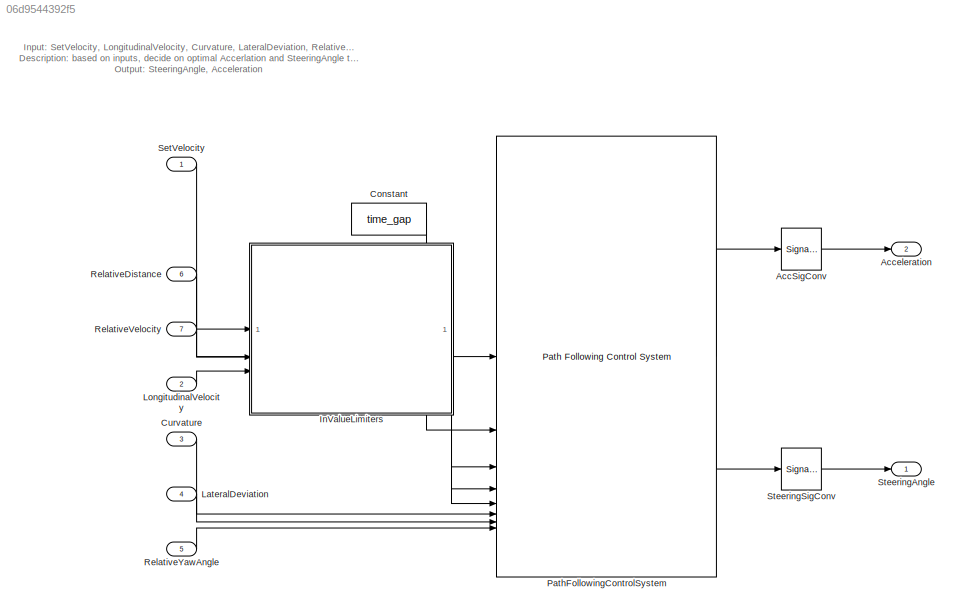
MODEL slx_06d9544392f5
KIND model
CONFIG AbsTol = auto
CONFIG EnableMultiTasking = on
CONFIG FixedStep = auto
CONFIG MaxStep = auto
CONFIG MinStep = auto
CONFIG RelTol = 1e-3
CONFIG SampleTimeConstraint = Unconstrained
CONFIG SolverName = FixedStepDiscrete
CONFIG StartTime = 0.0
CONFIG StopTime = 10.0
BLOCK [SignalConversion] AccSigConv
  OverrideOpt = off
BLOCK [Outport] Acceleration
  OutDataTypeStr = double
  OutMax = realmax
  OutMin = -realmax
  Port = 2
  PortDimensions = 1
  SampleTime = Ts
  SignalType = real
  Unit = m/s^2
  VarSizeSig = No
  VectorParamsAs1DForOutWhenUnconnected = off
BLOCK [Constant] Constant
  Value = time_gap
BLOCK [Inport] Curvature
  OutDataTypeStr = double
  OutMax = realmax
  OutMin = -realmax
  Port = 3
  PortDimensions = PredictionNumSteps
  SampleTime = Ts
  SignalType = real
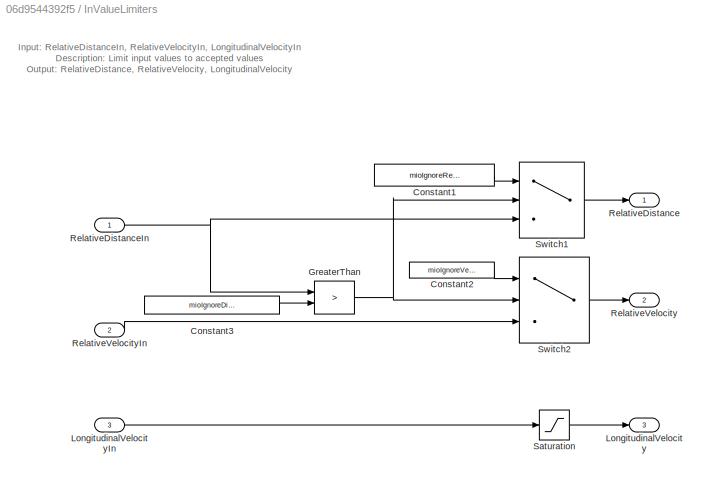
BLOCK [SubSystem] InValueLimiters
BLOCK [Constant] InValueLimiters/Constant1
  OutDataTypeStr = double
  Value = mioIgnoreRelDistance
BLOCK [Constant] InValueLimiters/Constant2
  OutDataTypeStr = double
  Value = mioIgnoreVelocity
BLOCK [Constant] InValueLimiters/Constant3
  OutDataTypeStr = double
  Value = mioIgnoreDistanceThreshold
BLOCK [RelationalOperator] InValueLimiters/GreaterThan
  Operator = >
  RndMeth = Simplest
BLOCK [Outport] InValueLimiters/LongitudinalVelocity
  Port = 3
BLOCK [Inport] InValueLimiters/LongitudinalVelocityIn
  Port = 3
BLOCK [Outport] InValueLimiters/RelativeDistance
BLOCK [Inport] InValueLimiters/RelativeDistanceIn
BLOCK [Outport] InValueLimiters/RelativeVelocity
  Port = 2
BLOCK [Inport] InValueLimiters/RelativeVelocityIn
  Port = 2
BLOCK [Saturate] InValueLimiters/Saturation
  AttributesFormatString = %<LowerLimit>\n%<UpperLimit>
  LowerLimit = longVelLlimit
  UpperLimit = longVelUlimit
BLOCK [Switch] InValueLimiters/Switch1
  Criteria = u2 ~= 0
  InputSameDT = off
  SaturateOnIntegerOverflow = off
BLOCK [Switch] InValueLimiters/Switch2
  Criteria = u2 ~= 0
  InputSameDT = off
  SaturateOnIntegerOverflow = off
BLOCK [Inport] LateralDeviation
  OutDataTypeStr = double
  OutMax = realmax
  OutMin = -realmax
  Port = 4
  PortDimensions = 1
  SampleTime = Ts
  SignalType = real
BLOCK [Inport] LongitudinalVelocity
  OutDataTypeStr = double
  OutMax = realmax
  OutMin = -realmax
  Port = 2
  PortDimensions = 1
  SampleTime = Ts
  SignalType = real
  Unit = m/s
BLOCK [Reference] PathFollowingControlSystem  REF=mpcadaslib/Path Following Control System
  SourceBlock = mpcadaslib/Path Following Control System
  SourceType = Path following control (PFC) system
BLOCK [Inport] RelativeDistance
  OutDataTypeStr = double
  OutMax = realmax
  OutMin = -realmax
  Port = 6
  PortDimensions = 1
  SampleTime = Ts
  SignalType = real
  Unit = m
BLOCK [Inport] RelativeVelocity
  OutDataTypeStr = double
  OutMax = realmax
  OutMin = -realmax
  Port = 7
  PortDimensions = 1
  SampleTime = Ts
  SignalType = real
  Unit = m/s
BLOCK [Inport] RelativeYawAngle
  OutDataTypeStr = double
  OutMax = realmax
  OutMin = -realmax
  Port = 5
  PortDimensions = 1
  SampleTime = Ts
  SignalType = real
  Unit = rad
BLOCK [Inport] SetVelocity
  OutDataTypeStr = double
  OutMax = realmax
  OutMin = -realmax
  PortDimensions = 1
  SampleTime = Ts
  SignalType = real
  Unit = m/s
BLOCK [Outport] SteeringAngle
  OutDataTypeStr = double
  OutMax = realmax
  OutMin = -realmax
  PortDimensions = 1
  SampleTime = Ts
  SignalType = real
  Unit = rad
  VarSizeSig = No
  VectorParamsAs1DForOutWhenUnconnected = off
BLOCK [SignalConversion] SteeringSigConv
  OverrideOpt = off
ANNOTATION (root): Input: SetVelocity, LongitudinalVelocity, Curvature, LateralDeviation, RelativeYawAngle, RelativeDistanc, RelativeVelocity Description: based on inputs, decide on optimal Accerlation and SteeringAngle to output Output: SteeringAngle, Acceleration
ANNOTATION InValueLimiters: Input: RelativeDistanceIn, RelativeVelocityIn, LongitudinalVelocityIn Description: Limit input values to accepted values Output: RelativeDistance, RelativeVelocity, LongitudinalVelocity
LINE AccSigConv:1 -> Acceleration:1
LINE Constant:1 -> PathFollowingControlSystem:2
LINE Curvature:1 -> PathFollowingControlSystem:6
LINE InValueLimiters/Constant1:1 -> InValueLimiters/Switch1:1
LINE InValueLimiters/Constant2:1 -> InValueLimiters/Switch2:1
LINE InValueLimiters/Constant3:1 -> InValueLimiters/GreaterThan:2
NET InValueLimiters/GreaterThan:1 -> InValueLimiters/Switch1:2, InValueLimiters/Switch2:2
LINE InValueLimiters/LongitudinalVelocityIn:1 -> InValueLimiters/Saturation:1
NET InValueLimiters/RelativeDistanceIn:1 -> InValueLimiters/GreaterThan:1, InValueLimiters/Switch1:3
LINE InValueLimiters/RelativeVelocityIn:1 -> InValueLimiters/Switch2:3
LINE InValueLimiters/Saturation:1 -> InValueLimiters/LongitudinalVelocity:1
LINE InValueLimiters/Switch1:1 -> InValueLimiters/RelativeDistance:1
LINE InValueLimiters/Switch2:1 -> InValueLimiters/RelativeVelocity:1
LINE InValueLimiters:1 -> PathFollowingControlSystem:3
LINE InValueLimiters:2 -> PathFollowingControlSystem:4
LINE InValueLimiters:3 -> PathFollowingControlSystem:5
LINE LateralDeviation:1 -> PathFollowingControlSystem:7
LINE LongitudinalVelocity:1 -> InValueLimiters:3
LINE PathFollowingControlSystem:1 -> AccSigConv:1
LINE PathFollowingControlSystem:2 -> SteeringSigConv:1
LINE RelativeDistance:1 -> InValueLimiters:1
LINE RelativeVelocity:1 -> InValueLimiters:2
LINE RelativeYawAngle:1 -> PathFollowingControlSystem:8
LINE SetVelocity:1 -> PathFollowingControlSystem:1
LINE SteeringSigConv:1 -> SteeringAngle:1
note: NET lines group one-source signal fan-out (src -> all destinations, sorted); 1:1 wires keep LINE
